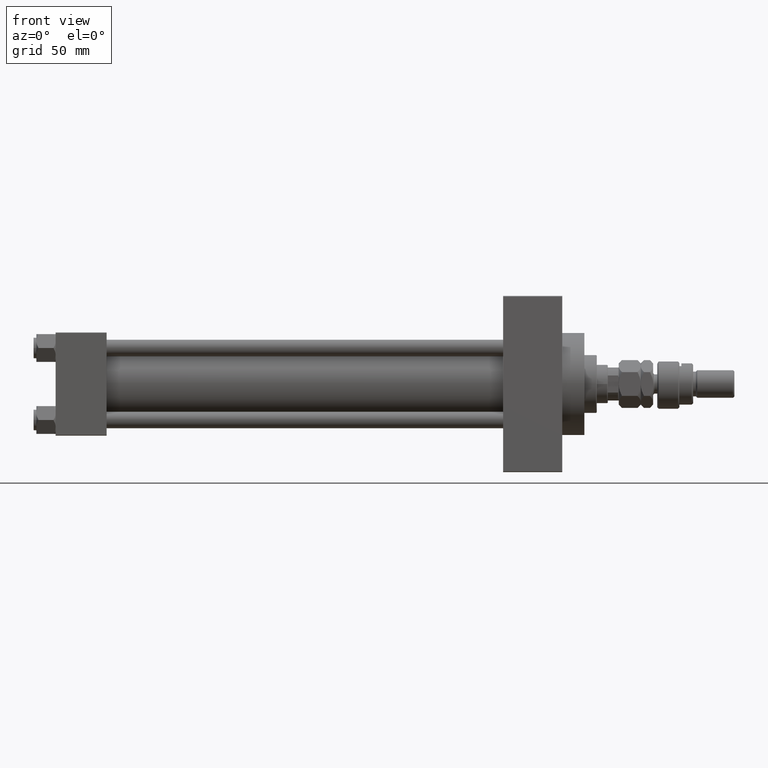
[diagram: clean part render]
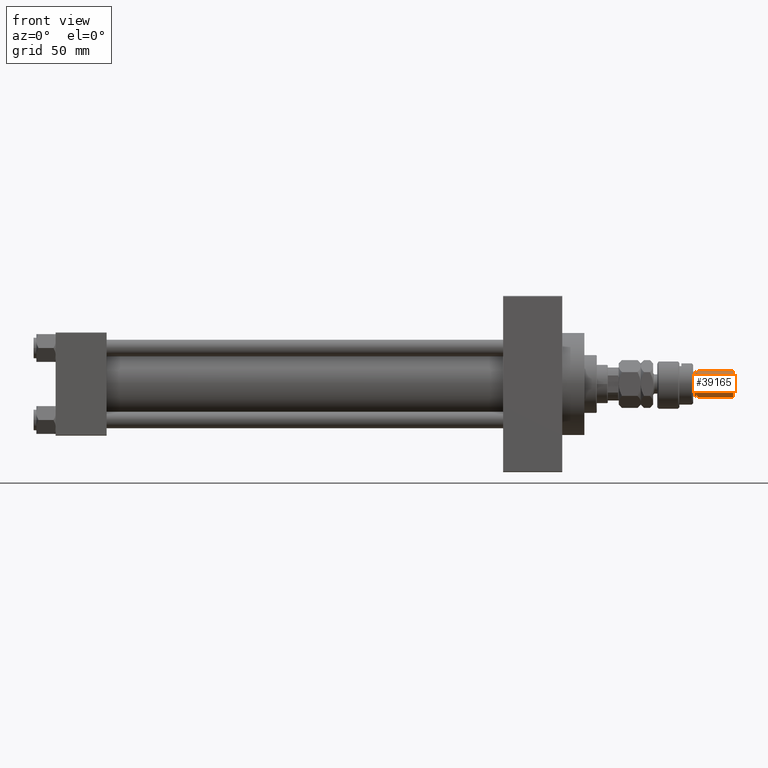
[diagram: same view with one face highlighted and labeled with its STEP entity id]
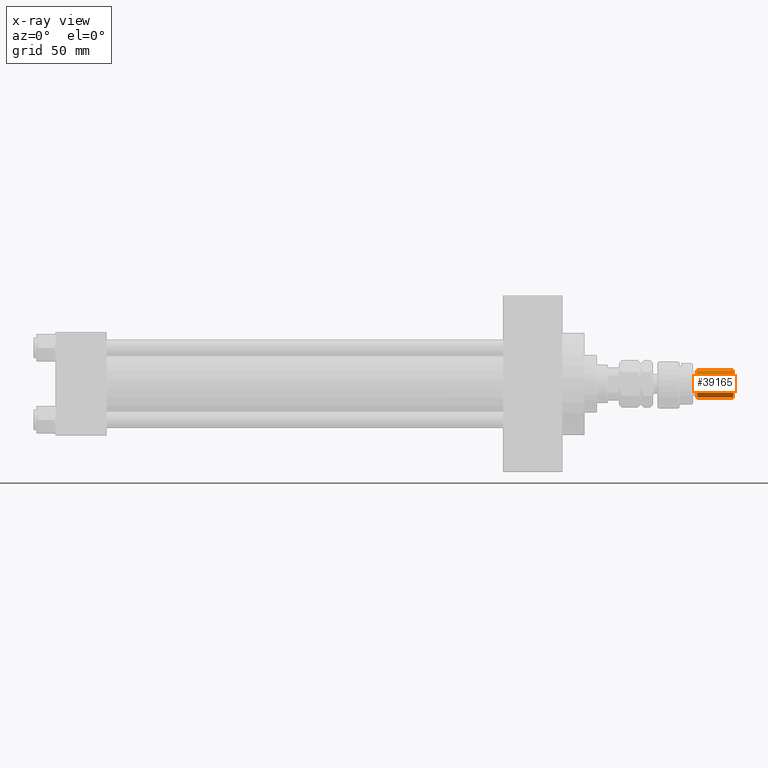
[diagram: x-ray of the same camera — body ghosted, the highlighted face saturated]
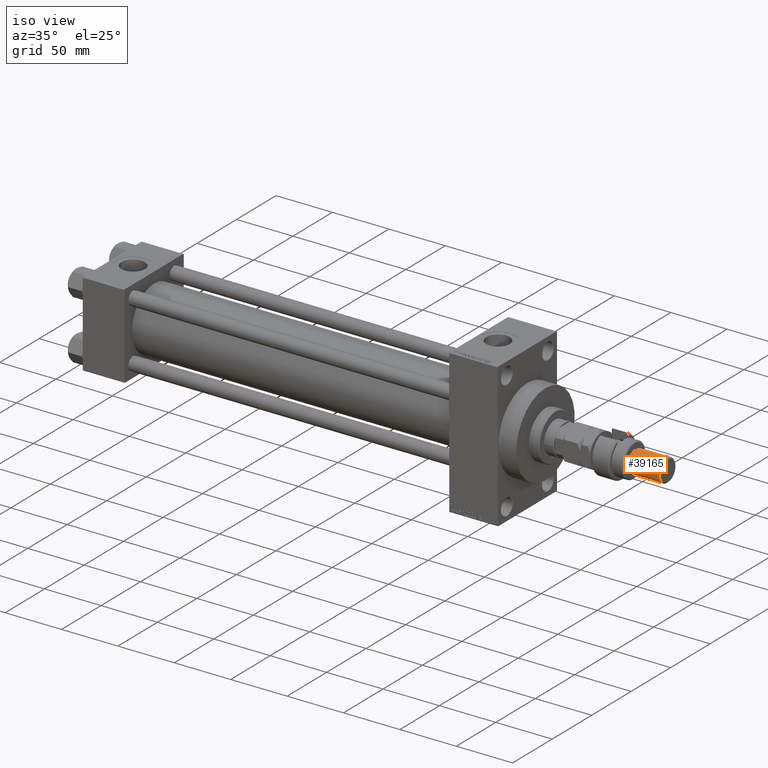
[diagram: same view with one face highlighted and labeled with its STEP entity id]
A machine part, front view. The second image highlights one B-rep face of the part: STEP entity #39165.
The next image is the same camera in x-ray: the body ghosted, the highlighted face saturated — about 0% of this face is hidden behind the body in this view.
A second angle (iso view) of the same face is appended — the face is thin or edge-on in the first view.
In plain terms, the highlighted cylindrical surface (edge-blend (fillet) strip) has radius 10 mm, axis along (-1, -0, 0).
Its self-contained STEP definition (entity closure, byte-faithful):
#639 = VERTEX_POINT ( 'NONE', #4967 ) ;
#1012 = VERTEX_POINT ( 'NONE', #33168 ) ;
#1599 = DIRECTION ( 'NONE',  ( -0.000000000000000000, -0.000000000000000000, -1.000000000000000000 ) ) ;
#2355 = CARTESIAN_POINT ( 'NONE',  ( 0.000000000000000000, 0.000000000000000000, 56.00000000000000711 ) ) ;
#4967 = CARTESIAN_POINT ( 'NONE',  ( 10.00000000000000000, 1.224646799147353256E-15, 54.99999999999998579 ) ) ;
#5136 = EDGE_CURVE ( 'NONE', #639, #34330, #44145, .T. ) ;
#5628 = EDGE_LOOP ( 'NONE', ( #25212, #49365, #36413, #20720 ) ) ;
#5800 = VECTOR ( 'NONE', #1599, 1000.000000000000000 ) ;
#5960 = VERTEX_POINT ( 'NONE', #20526 ) ;
#7677 = CIRCLE ( 'NONE', #33787, 10.00000000000000000 ) ;
#8374 = DIRECTION ( 'NONE',  ( -0.000000000000000000, -0.000000000000000000, -1.000000000000000000 ) ) ;
#8907 = DIRECTION ( 'NONE',  ( 1.000000000000000000, 0.000000000000000000, 0.000000000000000000 ) ) ;
#10024 = FACE_OUTER_BOUND ( 'NONE', #5628, .T. ) ;
#11506 = AXIS2_PLACEMENT_3D ( 'NONE', #2355, #18455, #34545 ) ;
#13047 = DIRECTION ( 'NONE',  ( 0.000000000000000000, 0.000000000000000000, -1.000000000000000000 ) ) ;
#13760 = CARTESIAN_POINT ( 'NONE',  ( -10.00000000000000000, 0.000000000000000000, 54.99999999999998579 ) ) ;
#16046 = CARTESIAN_POINT ( 'NONE',  ( 0.000000000000000000, 0.000000000000000000, 29.00000000000000711 ) ) ;
#16246 = CARTESIAN_POINT ( 'NONE',  ( 0.000000000000000000, 0.000000000000000000, 54.99999999999998579 ) ) ;
#18455 = DIRECTION ( 'NONE',  ( -0.000000000000000000, -0.000000000000000000, -1.000000000000000000 ) ) ;
#20526 = CARTESIAN_POINT ( 'NONE',  ( 10.00000000000000000, 1.224646799147353256E-15, 29.00000000000000711 ) ) ;
#20720 = ORIENTED_EDGE ( 'NONE', *, *, #26666, .T. ) ;
#22188 = EDGE_CURVE ( 'NONE', #34330, #1012, #36703, .T. ) ;
#24794 = AXIS2_PLACEMENT_3D ( 'NONE', #16246, #13047, #29154 ) ;
#25212 = ORIENTED_EDGE ( 'NONE', *, *, #49706, .F. ) ;
#26117 = CYLINDRICAL_SURFACE ( 'NONE', #11506, 10.00000000000000000 ) ;
#26666 = EDGE_CURVE ( 'NONE', #1012, #5960, #7677, .T. ) ;
#27892 = LINE ( 'NONE', #41053, #45446 ) ;
#29154 = DIRECTION ( 'NONE',  ( 1.000000000000000000, 0.000000000000000000, 0.000000000000000000 ) ) ;
#33168 = CARTESIAN_POINT ( 'NONE',  ( -10.00000000000000000, 0.000000000000000000, 29.00000000000000711 ) ) ;
#33787 = AXIS2_PLACEMENT_3D ( 'NONE', #16046, #48971, #8907 ) ;
#34330 = VERTEX_POINT ( 'NONE', #13760 ) ;
#34545 = DIRECTION ( 'NONE',  ( -1.000000000000000000, 0.000000000000000000, 0.000000000000000000 ) ) ;
#36413 = ORIENTED_EDGE ( 'NONE', *, *, #22188, .T. ) ;
#36703 = LINE ( 'NONE', #40663, #5800 ) ;
#39165 = ADVANCED_FACE ( 'NONE', ( #10024 ), #26117, .T. ) ;
#40663 = CARTESIAN_POINT ( 'NONE',  ( -10.00000000000000000, 0.000000000000000000, 56.00000000000000711 ) ) ;
#41053 = CARTESIAN_POINT ( 'NONE',  ( 10.00000000000000000, 1.224646799147353256E-15, 56.00000000000000711 ) ) ;
#44145 = CIRCLE ( 'NONE', #24794, 10.00000000000000000 ) ;
#45446 = VECTOR ( 'NONE', #8374, 1000.000000000000000 ) ;
#48971 = DIRECTION ( 'NONE',  ( -0.000000000000000000, -0.000000000000000000, 1.000000000000000000 ) ) ;
#49365 = ORIENTED_EDGE ( 'NONE', *, *, #5136, .T. ) ;
#49706 = EDGE_CURVE ( 'NONE', #639, #5960, #27892, .T. ) ;